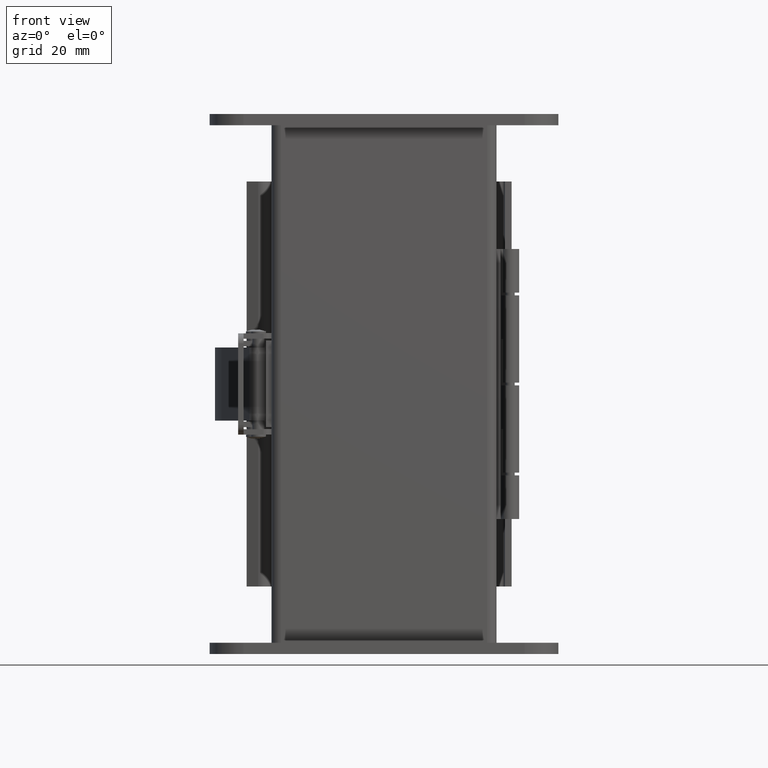
[diagram: clean part render]
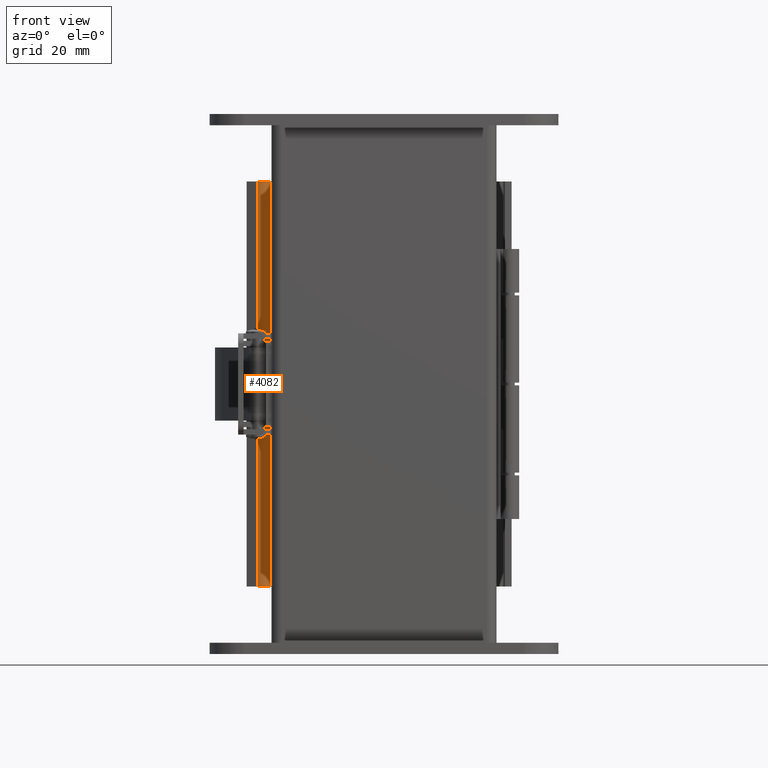
[diagram: same view with one face highlighted and labeled with its STEP entity id]
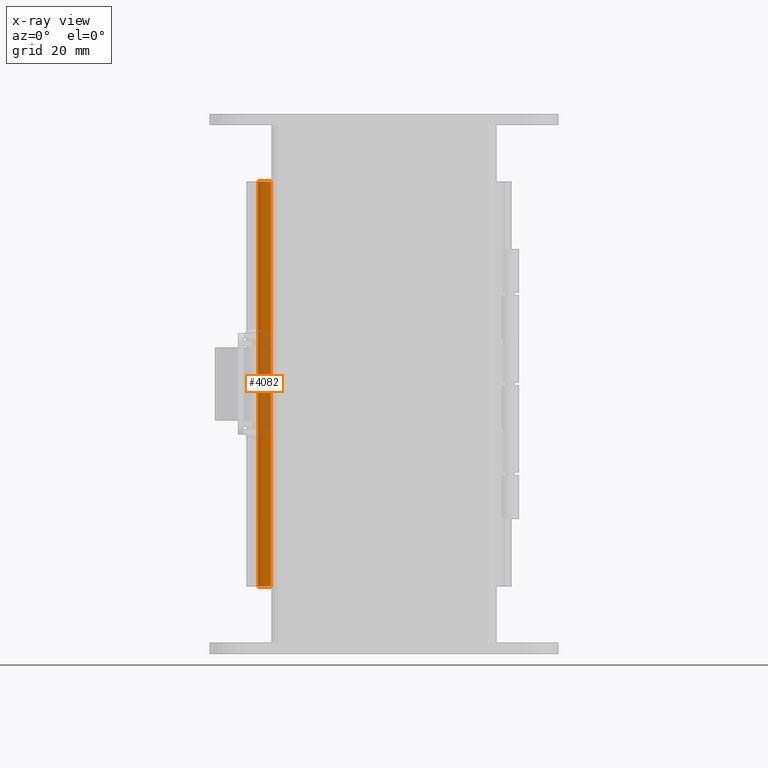
[diagram: x-ray of the same camera — body ghosted, the highlighted face saturated]
A machine part, front view. The second image highlights one B-rep face of the part: STEP entity #4082.
The next image is the same camera in x-ray: the body ghosted, the highlighted face saturated — about 25% of this face is hidden behind the body in this view.
In plain terms, the highlighted cylindrical surface (edge-blend (fillet) strip) has radius 2.6733 mm, axis along (0, -0, -1).
Its self-contained STEP definition (entity closure, byte-faithful):
#393=FACE_OUTER_BOUND('',#640,.T.);
#640=EDGE_LOOP('',(#3025,#3026,#3027,#3028));
#889=CIRCLE('',#4372,0.10525);
#890=CIRCLE('',#4373,0.10525);
#1130=LINE('',#6237,#1520);
#1131=LINE('',#6241,#1521);
#1520=VECTOR('',#5029,4.5);
#1521=VECTOR('',#5032,4.5);
#1886=VERTEX_POINT('',#6235);
#1887=VERTEX_POINT('',#6236);
#1888=VERTEX_POINT('',#6238);
#1889=VERTEX_POINT('',#6240);
#2316=EDGE_CURVE('',#1886,#1887,#1130,.T.);
#2317=EDGE_CURVE('',#1888,#1886,#889,.T.);
#2318=EDGE_CURVE('',#1889,#1888,#1131,.T.);
#2319=EDGE_CURVE('',#1887,#1889,#890,.T.);
#3025=ORIENTED_EDGE('',*,*,#2316,.F.);
#3026=ORIENTED_EDGE('',*,*,#2317,.F.);
#3027=ORIENTED_EDGE('',*,*,#2318,.F.);
#3028=ORIENTED_EDGE('',*,*,#2319,.F.);
#3829=CYLINDRICAL_SURFACE('',#4371,0.10525);
#4082=ADVANCED_FACE('',(#393),#3829,.T.);
#4371=AXIS2_PLACEMENT_3D('',#6234,#5027,#5028);
#4372=AXIS2_PLACEMENT_3D('',#6239,#5030,#5031);
#4373=AXIS2_PLACEMENT_3D('',#6242,#5033,#5034);
#5027=DIRECTION('center_axis',(-1.,-1.25769292535949E-34,-6.82094255523171E-20));
#5028=DIRECTION('ref_axis',(6.82094255523171E-20,-1.84386969275212E-15,
-1.));
#5029=DIRECTION('',(1.,1.49615323860327E-18,-4.76345819200251E-19));
#5030=DIRECTION('center_axis',(-1.,-1.25769292535949E-34,-6.82094255523171E-20));
#5031=DIRECTION('ref_axis',(0.,-3.32234245310238E-15,-1.));
#5032=DIRECTION('',(-1.,1.6115700094624E-34,6.82094255523172E-20));
#5033=DIRECTION('center_axis',(1.,1.25769292535949E-34,6.82094255523171E-20));
#5034=DIRECTION('ref_axis',(0.,-0.939692620785909,0.342020143325666));
#6234=CARTESIAN_POINT('Origin',(3.49673387002487E-16,-0.495687422290392,
1.40625));
#6235=CARTESIAN_POINT('',(-2.25,-0.59459007062811,1.44224762008503));
#6236=CARTESIAN_POINT('',(2.25,-0.594590070628109,1.44224762008503));
#6237=CARTESIAN_POINT('',(3.74302503730936E-16,-0.594590070628109,1.44224762008503));
#6238=CARTESIAN_POINT('',(-2.25,-0.495687422290393,1.301));
#6239=CARTESIAN_POINT('Origin',(-2.25,-0.495687422290392,1.40625));
#6240=CARTESIAN_POINT('',(2.25,-0.495687422290393,1.301));
#6241=CARTESIAN_POINT('',(1.125,-0.495687422290393,1.301));
#6242=CARTESIAN_POINT('Origin',(2.25,-0.495687422290392,1.40625));